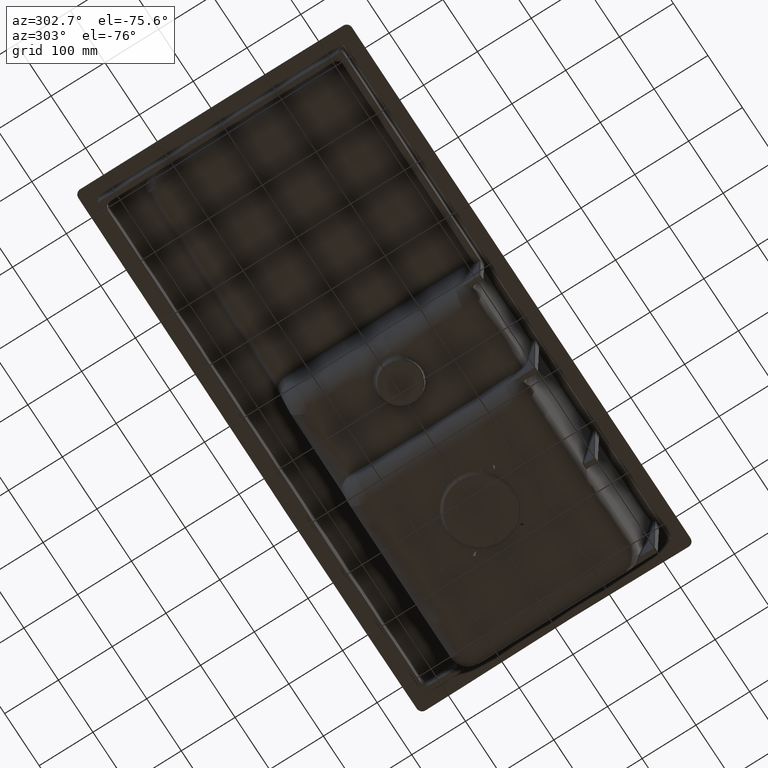
[diagram: clean part render]
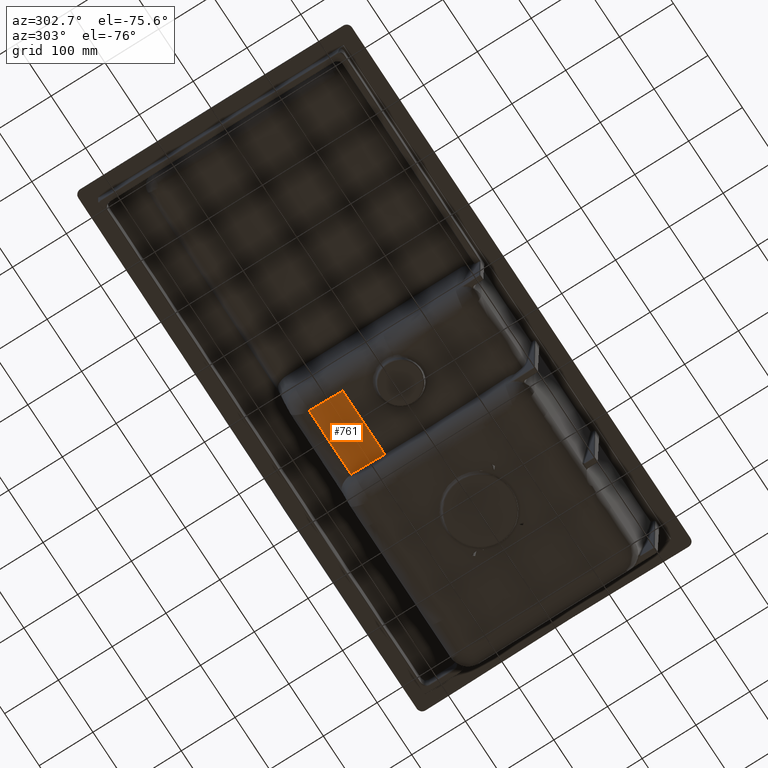
[diagram: same view with one face highlighted and labeled with its STEP entity id]
A machine part, auxiliary view. The second image highlights one B-rep face of the part: STEP entity #761.
In plain terms, the highlighted planar face has unit normal (0, 0.0697, -0.9976).
Its self-contained STEP definition (entity closure, byte-faithful):
#154=PLANE('',#6220);
#761=ADVANCED_FACE('',(#1269),#154,.T.);
#1269=FACE_OUTER_BOUND('',#1680,.T.);
#1680=EDGE_LOOP('',(#2770,#2771,#2772,#2773,#2774,#2775,#2776));
#2770=ORIENTED_EDGE('',*,*,#4881,.T.);
#2771=ORIENTED_EDGE('',*,*,#4897,.T.);
#2772=ORIENTED_EDGE('',*,*,#4898,.T.);
#2773=ORIENTED_EDGE('',*,*,#4899,.T.);
#2774=ORIENTED_EDGE('',*,*,#4900,.F.);
#2775=ORIENTED_EDGE('',*,*,#4901,.F.);
#2776=ORIENTED_EDGE('',*,*,#4902,.F.);
#4131=VERTEX_POINT('',#17812);
#4132=VERTEX_POINT('',#17817);
#4145=VERTEX_POINT('',#18346);
#4146=VERTEX_POINT('',#18627);
#4147=VERTEX_POINT('',#18632);
#4148=VERTEX_POINT('',#18637);
#4149=VERTEX_POINT('',#18642);
#4881=EDGE_CURVE('',#4132,#4131,#5736,.T.);
#4897=EDGE_CURVE('',#4131,#4145,#5752,.T.);
#4898=EDGE_CURVE('',#4145,#4146,#5753,.T.);
#4899=EDGE_CURVE('',#4146,#4147,#5754,.T.);
#4900=EDGE_CURVE('',#4148,#4147,#5755,.T.);
#4901=EDGE_CURVE('',#4149,#4148,#5756,.T.);
#4902=EDGE_CURVE('',#4132,#4149,#5757,.T.);
#5736=B_SPLINE_CURVE_WITH_KNOTS('',3,(#17813,#17814,#17815,#17816),
 .UNSPECIFIED.,.F.,.F.,(4,4),(0.,1.),.UNSPECIFIED.);
#5752=B_SPLINE_CURVE_WITH_KNOTS('',3,(#18347,#18348,#18349,#18350),
 .UNSPECIFIED.,.F.,.F.,(4,4),(0.,1.),.UNSPECIFIED.);
#5753=B_SPLINE_CURVE_WITH_KNOTS('',3,(#18623,#18624,#18625,#18626),
 .UNSPECIFIED.,.F.,.F.,(4,4),(0.,1.),.UNSPECIFIED.);
#5754=B_SPLINE_CURVE_WITH_KNOTS('',3,(#18628,#18629,#18630,#18631),
 .UNSPECIFIED.,.F.,.F.,(4,4),(0.,1.),.UNSPECIFIED.);
#5755=B_SPLINE_CURVE_WITH_KNOTS('',3,(#18633,#18634,#18635,#18636),
 .UNSPECIFIED.,.F.,.F.,(4,4),(0.,1.),.UNSPECIFIED.);
#5756=B_SPLINE_CURVE_WITH_KNOTS('',3,(#18638,#18639,#18640,#18641),
 .UNSPECIFIED.,.F.,.F.,(4,4),(0.,1.),.UNSPECIFIED.);
#5757=B_SPLINE_CURVE_WITH_KNOTS('',3,(#18643,#18644,#18645,#18646),
 .UNSPECIFIED.,.F.,.F.,(4,4),(0.,1.),.UNSPECIFIED.);
#6220=AXIS2_PLACEMENT_3D('',#18647,#6449,#6450);
#6449=DIRECTION('',(1.06542346731906E-16,0.0697271718005193,-0.997566098818871));
#6450=DIRECTION('',(1.,-1.52655665885959E-15,0.));
#17812=CARTESIAN_POINT('',(38.9488479920241,85.2060725900579,-150.94872452617));
#17813=CARTESIAN_POINT('',(87.372050726515,85.2060725900578,-150.94872452617));
#17814=CARTESIAN_POINT('',(71.2309831483513,85.2060725900579,-150.94872452617));
#17815=CARTESIAN_POINT('',(55.0899155701877,85.2060725900579,-150.94872452617));
#17816=CARTESIAN_POINT('',(38.9488479920241,85.2060725900579,-150.94872452617));
#17817=CARTESIAN_POINT('',(87.3720504773949,85.2060726503621,-150.948724521955));
#18346=CARTESIAN_POINT('',(-34.3873305286828,85.206072590058,-150.94872452617));
#18347=CARTESIAN_POINT('',(38.9488479920241,85.206072590058,-150.94872452617));
#18348=CARTESIAN_POINT('',(14.5034551517885,85.2060725900581,-150.94872452617));
#18349=CARTESIAN_POINT('',(-9.94193768844711,85.2060725900581,-150.94872452617));
#18350=CARTESIAN_POINT('',(-34.3873305286827,85.2060725900581,-150.94872452617));
#18623=CARTESIAN_POINT('',(-34.3873305286826,85.206072590058,-150.94872452617));
#18624=CARTESIAN_POINT('',(-34.5435372640811,105.237353007207,-149.548592211445));
#18625=CARTESIAN_POINT('',(-34.6929165268595,125.268633424382,-148.148459896717));
#18626=CARTESIAN_POINT('',(-34.8354683170178,145.299913841584,-146.748327581988));
#18627=CARTESIAN_POINT('',(-34.8354683176549,145.29991383948,-146.748327582135));
#18628=CARTESIAN_POINT('',(-34.8354683167551,145.299913841583,-146.748327581988));
#18629=CARTESIAN_POINT('',(-34.842678294598,146.411573680472,-146.670625566391));
#18630=CARTESIAN_POINT('',(-33.9593467431008,147.304111261402,-146.608239603879));
#18631=CARTESIAN_POINT('',(-32.8437251700911,147.309588428089,-146.607856764744));
#18632=CARTESIAN_POINT('',(-32.8436771444818,147.309305387124,-146.607876548541));
#18633=CARTESIAN_POINT('',(87.0446232951202,147.663426770667,-146.583124421762));
#18634=CARTESIAN_POINT('',(47.0813478429819,147.66160475355,-146.58325177583));
#18635=CARTESIAN_POINT('',(7.1189854406802,147.467916424503,-146.596790066086));
#18636=CARTESIAN_POINT('',(-32.8435901164173,147.309028341916,-146.607895913251));
#18637=CARTESIAN_POINT('',(87.044622763285,147.663427763097,-146.583124352394));
#18638=CARTESIAN_POINT('',(86.9345460701292,144.720978069287,-146.788793626398));
#18639=CARTESIAN_POINT('',(86.9273317586024,145.70241972884,-146.720193509284));
#18640=CARTESIAN_POINT('',(86.9651360885966,146.68516583709,-146.651502214735));
#18641=CARTESIAN_POINT('',(87.0466906934573,147.66325617437,-146.583136345982));
#18642=CARTESIAN_POINT('',(86.9345460240833,144.720978034749,-146.788793137114));
#18643=CARTESIAN_POINT('',(87.372050726515,85.2060729518739,-150.94872450088));
#18644=CARTESIAN_POINT('',(87.226216830043,105.044240128516,-149.562090279688));
#18645=CARTESIAN_POINT('',(87.0803829335709,124.882407305159,-148.175456058495));
#18646=CARTESIAN_POINT('',(86.9345490370989,144.720574481801,-146.788821837302));
#18647=CARTESIAN_POINT('',(92.3521984994748,85.2060725900578,-150.94872452617));